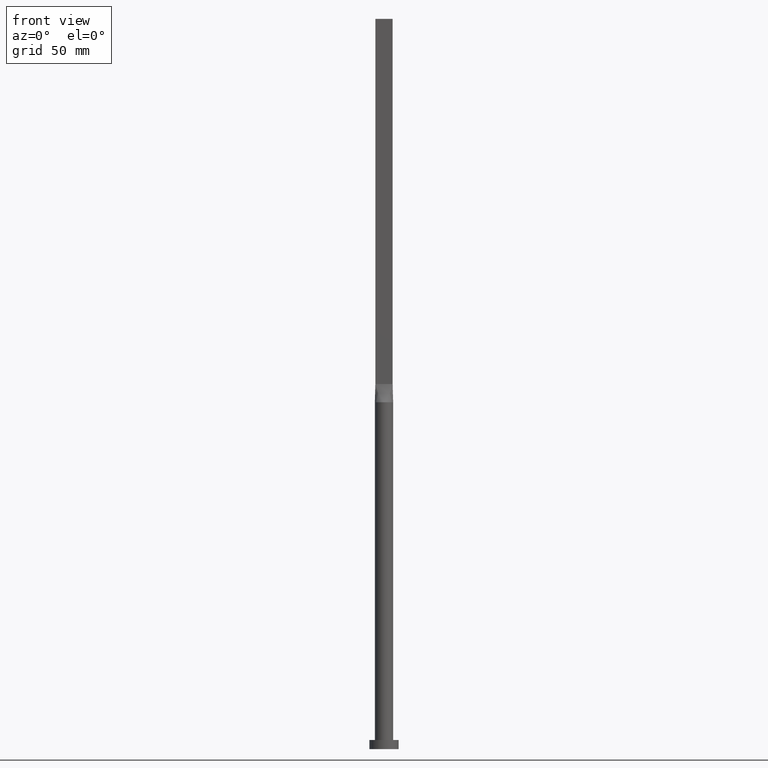
[diagram: clean part render]
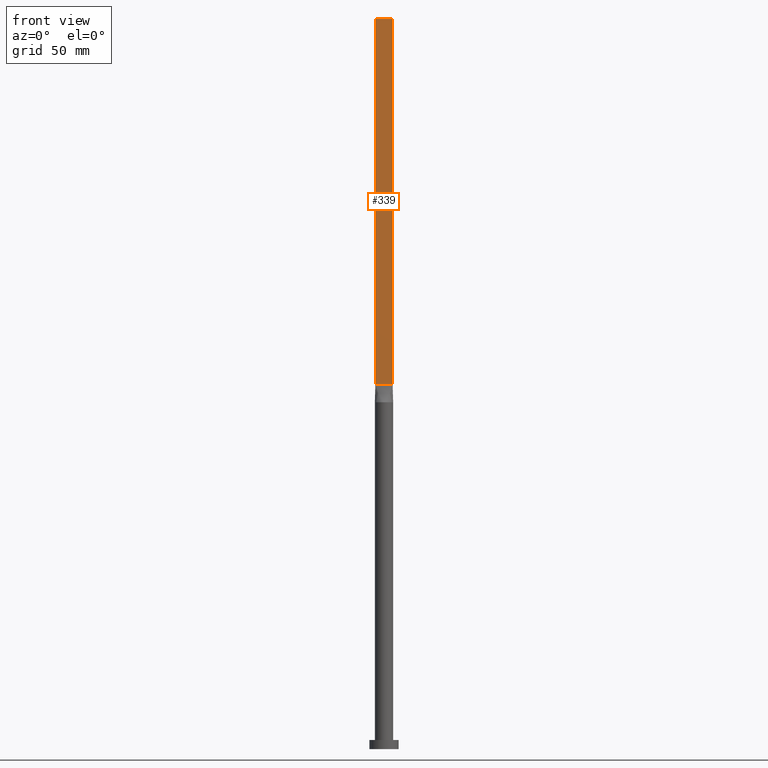
[diagram: same view with one face highlighted and labeled with its STEP entity id]
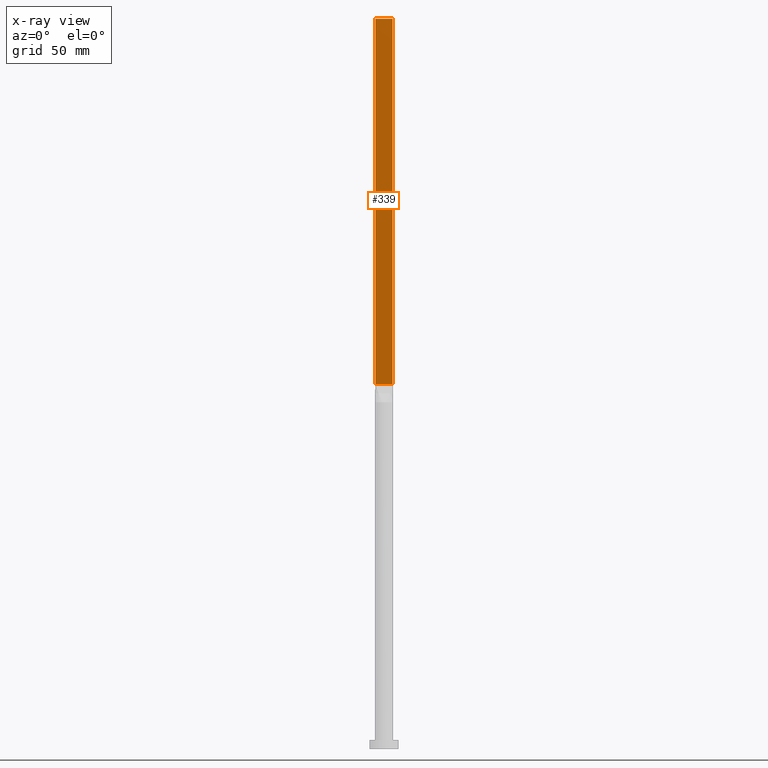
[diagram: x-ray of the same camera — body ghosted, the highlighted face saturated]
A machine part, front view. The second image highlights one B-rep face of the part: STEP entity #339.
The next image is the same camera in x-ray: the body ghosted, the highlighted face saturated — about 0% of this face is hidden behind the body in this view.
In plain terms, the highlighted planar face has unit normal (0, 1, -0).
Its self-contained STEP definition (entity closure, byte-faithful):
#4 = DIRECTION ( 'NONE',  ( 6.847592668329501559E-17, 1.000000000000000000, -0.000000000000000000 ) ) ;
#6 = EDGE_LOOP ( 'NONE', ( #567, #279, #445, #197 ) ) ;
#32 = CARTESIAN_POINT ( 'NONE',  ( 4.750000000000000000, -0.7499999999999997780, 200.0000000000000000 ) ) ;
#35 = VERTEX_POINT ( 'NONE', #189 ) ;
#40 = VERTEX_POINT ( 'NONE', #429 ) ;
#60 = CARTESIAN_POINT ( 'NONE',  ( 4.750000000000000000, -0.7499999999999997780, 400.0000000000000000 ) ) ;
#70 = AXIS2_PLACEMENT_3D ( 'NONE', #453, #4, #394 ) ;
#76 = EDGE_CURVE ( 'NONE', #146, #179, #193, .T. ) ;
#79 = CARTESIAN_POINT ( 'NONE',  ( -4.750000000000000000, -0.7499999999999991118, 400.0000000000000000 ) ) ;
#126 = LINE ( 'NONE', #336, #220 ) ;
#128 = VECTOR ( 'NONE', #132, 1000.000000000000000 ) ;
#132 = DIRECTION ( 'NONE',  ( -0.000000000000000000, -0.000000000000000000, -1.000000000000000000 ) ) ;
#135 = LINE ( 'NONE', #138, #418 ) ;
#138 = CARTESIAN_POINT ( 'NONE',  ( -4.750000000000000000, -0.7499999999999991118, 200.0000000000000000 ) ) ;
#146 = VERTEX_POINT ( 'NONE', #60 ) ;
#179 = VERTEX_POINT ( 'NONE', #32 ) ;
#188 = FACE_OUTER_BOUND ( 'NONE', #6, .T. ) ;
#189 = CARTESIAN_POINT ( 'NONE',  ( -4.750000000000000000, -0.7499999999999991118, 200.0000000000000000 ) ) ;
#193 = LINE ( 'NONE', #541, #425 ) ;
#197 = ORIENTED_EDGE ( 'NONE', *, *, #293, .T. ) ;
#201 = DIRECTION ( 'NONE',  ( 1.000000000000000000, -6.847592668329501559E-17, 0.000000000000000000 ) ) ;
#220 = VECTOR ( 'NONE', #531, 1000.000000000000000 ) ;
#237 = EDGE_CURVE ( 'NONE', #40, #146, #126, .T. ) ;
#279 = ORIENTED_EDGE ( 'NONE', *, *, #76, .F. ) ;
#293 = EDGE_CURVE ( 'NONE', #40, #35, #442, .T. ) ;
#336 = CARTESIAN_POINT ( 'NONE',  ( -4.750000000000000000, -0.7499999999999991118, 400.0000000000000000 ) ) ;
#339 = ADVANCED_FACE ( 'NONE', ( #188 ), #436, .F. ) ;
#394 = DIRECTION ( 'NONE',  ( -1.000000000000000000, 6.847592668329501559E-17, 0.000000000000000000 ) ) ;
#418 = VECTOR ( 'NONE', #201, 1000.000000000000000 ) ;
#425 = VECTOR ( 'NONE', #537, 1000.000000000000000 ) ;
#429 = CARTESIAN_POINT ( 'NONE',  ( -4.750000000000000000, -0.7499999999999991118, 400.0000000000000000 ) ) ;
#436 = PLANE ( 'NONE',  #70 ) ;
#442 = LINE ( 'NONE', #79, #128 ) ;
#445 = ORIENTED_EDGE ( 'NONE', *, *, #237, .F. ) ;
#453 = CARTESIAN_POINT ( 'NONE',  ( -4.750000000000000000, -0.7499999999999991118, 400.0000000000000000 ) ) ;
#531 = DIRECTION ( 'NONE',  ( 1.000000000000000000, -6.847592668329501559E-17, 0.000000000000000000 ) ) ;
#537 = DIRECTION ( 'NONE',  ( -0.000000000000000000, -0.000000000000000000, -1.000000000000000000 ) ) ;
#541 = CARTESIAN_POINT ( 'NONE',  ( 4.750000000000000000, -0.7499999999999997780, 400.0000000000000000 ) ) ;
#567 = ORIENTED_EDGE ( 'NONE', *, *, #585, .T. ) ;
#585 = EDGE_CURVE ( 'NONE', #35, #179, #135, .T. ) ;